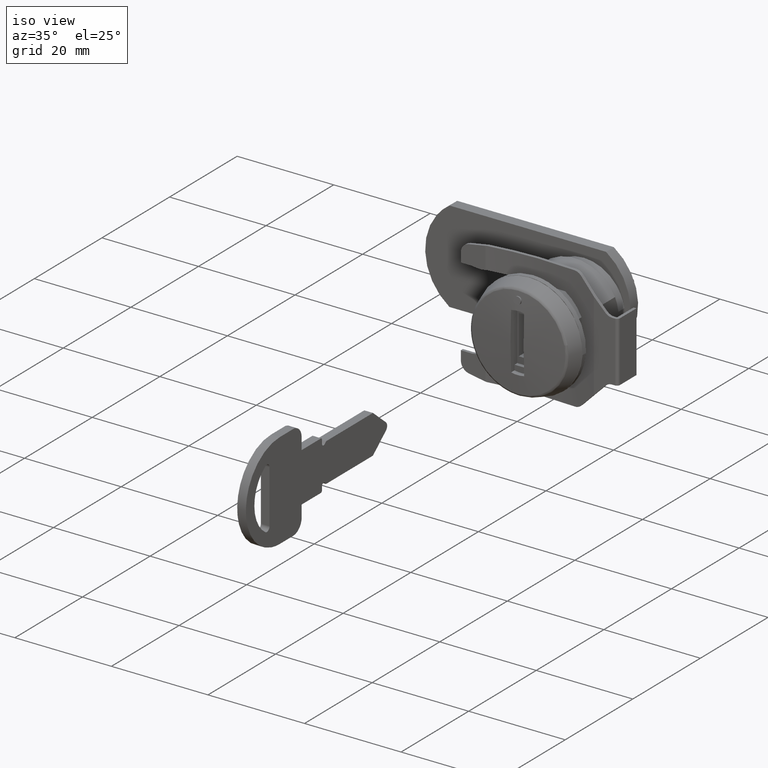
[diagram: clean part render]
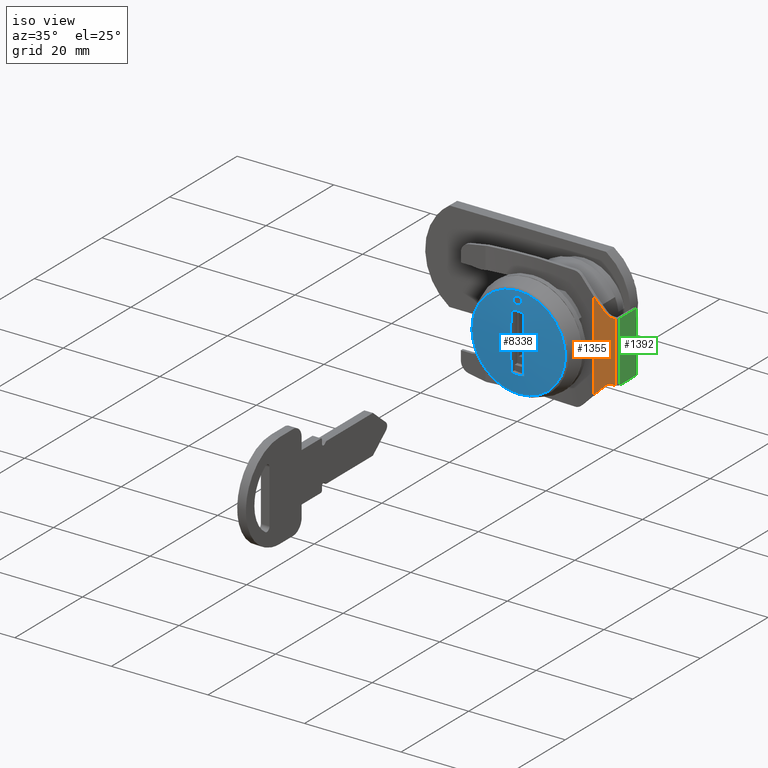
[diagram: same view with three faces highlighted in distinct colors, each labeled with its STEP entity id]
A machine part, iso view with three faces highlighted in distinct colors.
Their STEP definitions:

[orange] entity #1355 — the highlighted face is a freeform B-spline surface patch.
#757=CARTESIAN_POINT('',(6.701255999999920,-15.028427124746100,-6.250000000000000));
#758=VERTEX_POINT('',#757);
#764=CARTESIAN_POINT('',(6.701255999999920,-13.614213695077600,-6.835786304922330));
#765=VERTEX_POINT('',#764);
#766=CARTESIAN_POINT('',(6.701255999999920,-13.614213695077600,-6.835786304922330));
#767=CARTESIAN_POINT('',(6.701256000000001,-14.200000109935987,-6.250000000000000));
#768=CARTESIAN_POINT('',(6.701255999999920,-15.028427124746100,-6.250000000000000));
#776=(BOUNDED_CURVE()B_SPLINE_CURVE(2,(#766,#767,#768),.UNSPECIFIED.,.F.,.U.)CURVE()GEOMETRIC_REPRESENTATION_ITEM()QUASI_UNIFORM_CURVE()RATIONAL_B_SPLINE_CURVE((1.0,0.923879550466087,1.0))REPRESENTATION_ITEM(''));
#777=EDGE_CURVE('',#765,#758,#776,.T.);
#956=CARTESIAN_POINT('',(6.701255999999920,-13.614213695077600,6.835786304922330));
#957=VERTEX_POINT('',#956);
#963=CARTESIAN_POINT('',(6.701255999999920,-15.028427124746100,6.250000000000000));
#964=VERTEX_POINT('',#963);
#965=CARTESIAN_POINT('',(6.701255999999920,-15.028427124746100,6.250000000000000));
#966=CARTESIAN_POINT('',(6.701256000000000,-14.200000109935985,6.250000000000000));
#967=CARTESIAN_POINT('',(6.701255999999920,-13.614213695077600,6.835786304922330));
#975=(BOUNDED_CURVE()B_SPLINE_CURVE(2,(#965,#966,#967),.UNSPECIFIED.,.F.,.U.)CURVE()GEOMETRIC_REPRESENTATION_ITEM()QUASI_UNIFORM_CURVE()RATIONAL_B_SPLINE_CURVE((1.0,0.923879550466087,1.0))REPRESENTATION_ITEM(''));
#976=EDGE_CURVE('',#964,#957,#975,.T.);
#991=CARTESIAN_POINT('',(6.701255999999920,-11.224889015041580,-9.225110536547600));
#992=VERTEX_POINT('',#991);
#1028=CARTESIAN_POINT('',(6.701255999999920,-11.224889015041580,-9.225110536547600));
#1029=CARTESIAN_POINT('',(6.701255999999920,-13.614213695077600,-6.835786304922330));
#1030=QUASI_UNIFORM_CURVE('',1,(#1028,#1029),.UNSPECIFIED.,.F.,.U.);
#1031=EDGE_CURVE('',#992,#765,#1030,.T.);
#1041=CARTESIAN_POINT('',(6.701255999999920,-15.600000000000000,-6.250000000000000));
#1042=VERTEX_POINT('',#1041);
#1043=CARTESIAN_POINT('',(6.701255999999920,-15.028427124746100,-6.250000000000000));
#1044=CARTESIAN_POINT('',(6.701255999999920,-15.600000000000000,-6.250000000000000));
#1045=QUASI_UNIFORM_CURVE('',1,(#1043,#1044),.UNSPECIFIED.,.F.,.U.);
#1046=EDGE_CURVE('',#758,#1042,#1045,.T.);
#1100=CARTESIAN_POINT('',(6.701255999999920,-11.224889015041580,9.225110536547600));
#1101=VERTEX_POINT('',#1100);
#1102=CARTESIAN_POINT('',(6.701255999999920,-11.224889015041580,9.225110536547600));
#1103=CARTESIAN_POINT('',(6.701255999999920,-13.614213695077600,6.835786304922330));
#1104=QUASI_UNIFORM_CURVE('',1,(#1102,#1103),.UNSPECIFIED.,.F.,.U.);
#1105=EDGE_CURVE('',#1101,#957,#1104,.T.);
#1158=CARTESIAN_POINT('',(6.701255999999920,-15.600000000000000,6.250000000000000));
#1159=VERTEX_POINT('',#1158);
#1160=CARTESIAN_POINT('',(6.701255999999920,-15.028427124746100,6.250000000000000));
#1161=CARTESIAN_POINT('',(6.701255999999920,-15.600000000000000,6.250000000000000));
#1162=QUASI_UNIFORM_CURVE('',1,(#1160,#1161),.UNSPECIFIED.,.F.,.U.);
#1163=EDGE_CURVE('',#964,#1159,#1162,.T.);
#1332=CARTESIAN_POINT('',(6.701255999999920,-15.818537195922980,10.146699562981020));
#1333=CARTESIAN_POINT('',(6.701255999999920,-15.818537195922980,-10.146699562981020));
#1334=CARTESIAN_POINT('',(6.701255999999920,-11.006352092934391,10.146699562981020));
#1335=CARTESIAN_POINT('',(6.701255999999920,-11.006352092934391,-10.146699562981020));
#1336=B_SPLINE_SURFACE_WITH_KNOTS('',1,1,((#1332,#1334),(#1333,#1335)),.UNSPECIFIED.,.F.,.F.,.U.,(2,2),(2,2),(0.0,20.293399125962040),(0.0,4.812185102988590),.UNSPECIFIED.);
#1337=CARTESIAN_POINT('',(6.701255999999920,-11.224889015041580,-9.225110536547600));
#1338=CARTESIAN_POINT('',(6.701255999999920,-11.224889015041580,9.225110536547600));
#1339=QUASI_UNIFORM_CURVE('',1,(#1337,#1338),.UNSPECIFIED.,.F.,.U.);
#1340=EDGE_CURVE('',#992,#1101,#1339,.T.);
#1341=ORIENTED_EDGE('',*,*,#1340,.F.);
#1342=ORIENTED_EDGE('',*,*,#1031,.T.);
#1343=ORIENTED_EDGE('',*,*,#777,.T.);
#1344=ORIENTED_EDGE('',*,*,#1046,.T.);
#1345=CARTESIAN_POINT('',(6.701255999999920,-15.600000000000000,-6.250000000000000));
#1346=CARTESIAN_POINT('',(6.701255999999920,-15.600000000000000,6.250000000000000));
#1347=QUASI_UNIFORM_CURVE('',1,(#1345,#1346),.UNSPECIFIED.,.F.,.U.);
#1348=EDGE_CURVE('',#1042,#1159,#1347,.T.);
#1349=ORIENTED_EDGE('',*,*,#1348,.T.);
#1350=ORIENTED_EDGE('',*,*,#1163,.F.);
#1351=ORIENTED_EDGE('',*,*,#976,.T.);
#1352=ORIENTED_EDGE('',*,*,#1105,.F.);
#1353=EDGE_LOOP('',(#1341,#1342,#1343,#1344,#1349,#1350,#1351,#1352));
#1354=FACE_OUTER_BOUND('',#1353,.T.);
#1355=ADVANCED_FACE('',(#1354),#1336,.F.);

[blue] entity #8338 — the highlighted face is a freeform B-spline surface patch.
#7470=CARTESIAN_POINT('',(0.300159271301316,0.701130594300572,7.710393969342759));
#7471=VERTEX_POINT('',#7470);
#7477=CARTESIAN_POINT('',(0.278584860881453,-0.523789653383269,7.440766563371489));
#7478=VERTEX_POINT('',#7477);
#7479=CARTESIAN_POINT('',(0.300159271301316,0.701130594300572,7.710393969342759));
#7480=CARTESIAN_POINT('',(0.299855617532971,0.699684514819121,7.706599039317466));
#7481=CARTESIAN_POINT('',(0.299552699666332,0.698206214077159,7.702813306265453));
#7482=CARTESIAN_POINT('',(0.297431633699869,0.687606588102380,7.676305165217783));
#7483=CARTESIAN_POINT('',(0.295629477603547,0.677287394356344,7.653782618184089));
#7484=CARTESIAN_POINT('',(0.292137312017680,0.654606130221566,7.610139082633721));
#7485=CARTESIAN_POINT('',(0.290447582595863,0.642265790477542,7.589021594279268));
#7486=CARTESIAN_POINT('',(0.285543107075553,0.602322770441146,7.527727635999382));
#7487=CARTESIAN_POINT('',(0.282491478543643,0.571826387779951,7.489589737023952));
#7488=CARTESIAN_POINT('',(0.276839695696463,0.502824478883514,7.418956263453228));
#7489=CARTESIAN_POINT('',(0.274314453506199,0.465183498328585,7.387396907347681));
#7490=CARTESIAN_POINT('',(0.271003037268653,0.404802123103559,7.346012296929916));
#7491=CARTESIAN_POINT('',(0.269976611089082,0.383985046248918,7.333184478100418));
#7492=CARTESIAN_POINT('',(0.268081499542128,0.340944396895276,7.309500215101514));
#7493=CARTESIAN_POINT('',(0.267209458701839,0.318603128903870,7.298601835721046));
#7494=CARTESIAN_POINT('',(0.264885068867037,0.250753862718366,7.269552643208903));
#7495=CARTESIAN_POINT('',(0.263706251253156,0.204180140043509,7.254820303869941));
#7496=CARTESIAN_POINT('',(0.262078470509144,0.108393237841327,7.234477022595701));
#7497=CARTESIAN_POINT('',(0.261635238742224,0.058752204721457,7.228937708693934));
#7498=CARTESIAN_POINT('',(0.261533256415622,-0.039167328316873,7.227663178839291));
#7499=CARTESIAN_POINT('',(0.261861357637449,-0.087858062038528,7.231763642287317));
#7500=CARTESIAN_POINT('',(0.262931706975338,-0.160483829682612,7.245140393254832));
#7501=CARTESIAN_POINT('',(0.263388114322641,-0.184687765166290,7.250844369712308));
#7502=CARTESIAN_POINT('',(0.264477022635454,-0.231909923866102,7.264453062511318));
#7503=CARTESIAN_POINT('',(0.265110807257931,-0.255055498408913,7.272373821427845));
#7504=CARTESIAN_POINT('',(0.267275187435311,-0.323121580899236,7.299423284259245));
#7505=CARTESIAN_POINT('',(0.269073281090400,-0.366820399458291,7.321895060705325));
#7506=CARTESIAN_POINT('',(0.273370964418780,-0.449835456988199,7.375605599485481));
#7507=CARTESIAN_POINT('',(0.275824813367651,-0.488326625750851,7.406272714546898));
#7508=CARTESIAN_POINT('',(0.278584860881453,-0.523789653383270,7.440766563371490));
#7509=B_SPLINE_CURVE_WITH_KNOTS('',3,(#7479,#7480,#7481,#7482,#7483,#7484,#7485,#7486,#7487,#7488,#7489,#7490,#7491,#7492,#7493,#7494,#7495,#7496,#7497,#7498,#7499,#7500,#7501,#7502,#7503,#7504,#7505,#7506,#7507,#7508),.UNSPECIFIED.,.F.,.U.,(4,2,2,2,2,2,2,2,2,2,2,2,2,2,4),(0.684904013886884,0.687499999999999,0.703124999999999,0.718749999999999,0.749999999999999,0.781249999999999,0.796874999999999,0.812499999999999,0.843749999999999,0.874999999999999,0.906250000000000,0.921875000000000,0.937500000000000,0.968750000000000,1.0),.UNSPECIFIED.);
#7510=EDGE_CURVE('',#7471,#7478,#7509,.T.);
#7512=CARTESIAN_POINT('',(0.378445533027694,0.225766074778682,8.688780922300953));
#7513=VERTEX_POINT('',#7512);
#7514=CARTESIAN_POINT('',(0.278584860881453,-0.523789653383269,7.440766563371489));
#7515=CARTESIAN_POINT('',(0.281344908395255,-0.559252681015691,7.475260412196083));
#7516=CARTESIAN_POINT('',(0.284336381043423,-0.590727627309438,7.512646509635831));
#7517=CARTESIAN_POINT('',(0.289156530896685,-0.632202574379577,7.572886603155555));
#7518=CARTESIAN_POINT('',(0.290819150283770,-0.645064200738935,7.593665282328334));
#7519=CARTESIAN_POINT('',(0.294258745604684,-0.668816780690184,7.636651818039793));
#7520=CARTESIAN_POINT('',(0.296041583065087,-0.679725346184545,7.658932929336068));
#7521=CARTESIAN_POINT('',(0.301447905203081,-0.708762325652259,7.726498743907190));
#7522=CARTESIAN_POINT('',(0.305162596710400,-0.723505750587238,7.772923309659156));
#7523=CARTESIAN_POINT('',(0.312810953708613,-0.743846161051148,7.868509080822014));
#7524=CARTESIAN_POINT('',(0.316769593971589,-0.749349233737392,7.917982409849639));
#7525=CARTESIAN_POINT('',(0.324573997638959,-0.750539937230626,8.015518383024800));
#7526=CARTESIAN_POINT('',(0.328458867677249,-0.746390632125178,8.064069764525994));
#7527=CARTESIAN_POINT('',(0.334259554580444,-0.732879835161017,8.136564174900107));
#7528=CARTESIAN_POINT('',(0.336186906802460,-0.727139290608939,8.160651367546405));
#7529=CARTESIAN_POINT('',(0.339947648082027,-0.713460279906678,8.207651442913628));
#7530=CARTESIAN_POINT('',(0.343636331496297,-0.697539812699091,8.253750971062361));
#7531=CARTESIAN_POINT('',(0.347183078220645,-0.677204214459772,8.298076637456287));
#7532=CARTESIAN_POINT('',(0.350657890207087,-0.654630989757610,8.341503295423165));
#7533=CARTESIAN_POINT('',(0.352367994438488,-0.642152148673480,8.362875419104871));
#7534=CARTESIAN_POINT('',(0.357317810412993,-0.601784773418061,8.424736022257655));
#7535=CARTESIAN_POINT('',(0.360361148332814,-0.571209742928173,8.462770308842581));
#7536=CARTESIAN_POINT('',(0.365948438363678,-0.502928327229403,8.532597779819071));
#7537=CARTESIAN_POINT('',(0.368513398449972,-0.464749824540594,8.564653512561218));
#7538=CARTESIAN_POINT('',(0.372938975757160,-0.383880561754712,8.619962413524815));
#7539=CARTESIAN_POINT('',(0.374819430913943,-0.341099273756177,8.643463507464444));
#7540=CARTESIAN_POINT('',(0.377138837672253,-0.273387756992893,8.672450423698246));
#7541=CARTESIAN_POINT('',(0.377830714894342,-0.250090484022278,8.681097198141284));
#7542=CARTESIAN_POINT('',(0.379018078089444,-0.203123194986766,8.695936336361527));
#7543=CARTESIAN_POINT('',(0.379515846766553,-0.179426249798323,8.702157228361225));
#7544=CARTESIAN_POINT('',(0.380728322706604,-0.107710876407153,8.717310214521946));
#7545=CARTESIAN_POINT('',(0.381164941037054,-0.059074006439434,8.722766876630001));
#7546=CARTESIAN_POINT('',(0.381265784594414,0.039917457930251,8.724027174652079));
#7547=CARTESIAN_POINT('',(0.380927045114597,0.088811056060332,8.719793758977307));
#7548=CARTESIAN_POINT('',(0.379860492590610,0.160866088742602,8.706464458904772));
#7549=CARTESIAN_POINT('',(0.379411233440203,0.184692576354957,8.700849817439456));
#7550=CARTESIAN_POINT('',(0.378731961887994,0.214146488991716,8.692360583063747));
#7551=CARTESIAN_POINT('',(0.378591618326729,0.219963550598461,8.690606631524307));
#7552=CARTESIAN_POINT('',(0.378445533027694,0.225766074778682,8.688780922300953));
#7553=B_SPLINE_CURVE_WITH_KNOTS('',3,(#7514,#7515,#7516,#7517,#7518,#7519,#7520,#7521,#7522,#7523,#7524,#7525,#7526,#7527,#7528,#7529,#7530,#7531,#7532,#7533,#7534,#7535,#7536,#7537,#7538,#7539,#7540,#7541,#7542,#7543,#7544,#7545,#7546,#7547,#7548,#7549,#7550,#7551,#7552),.UNSPECIFIED.,.F.,.U.,(4,2,2,2,2,2,2,2,1,2,2,2,2,2,2,2,2,2,2,4),(0.0,0.031250000000003,0.046875000000004,0.062500000000005,0.093750000000006,0.125000000000007,0.156250000000008,0.171875000000008,0.187500000000008,0.203125000000008,0.218750000000008,0.250000000000007,0.281250000000006,0.312500000000005,0.328125000000005,0.343750000000005,0.375000000000004,0.406250000000003,0.421875000000003,0.425725489204131),.UNSPECIFIED.);
#7554=EDGE_CURVE('',#7478,#7513,#7553,.T.);
#7598=CARTESIAN_POINT('',(0.364229293935231,0.523599874790095,8.511112675767238));
#7599=VERTEX_POINT('',#7598);
#7600=CARTESIAN_POINT('',(0.378445533027694,0.225766074778682,8.688780922300953));
#7601=CARTESIAN_POINT('',(0.377998557272234,0.243507886925480,8.683194817685877));
#7602=CARTESIAN_POINT('',(0.377497360646554,0.261109898108830,8.676931084706236));
#7603=CARTESIAN_POINT('',(0.375492674973847,0.324002245849758,8.651877412916383));
#7604=CARTESIAN_POINT('',(0.373698532461046,0.367371750230485,8.629455016092987));
#7605=CARTESIAN_POINT('',(0.369442454310505,0.449545729231534,8.576264440359683));
#7606=CARTESIAN_POINT('',(0.366954719986882,0.488556914998954,8.545173840924051));
#7607=CARTESIAN_POINT('',(0.364229293935231,0.523599874790099,8.511112675767235));
#7608=B_SPLINE_CURVE_WITH_KNOTS('',3,(#7600,#7601,#7602,#7603,#7604,#7605,#7606,#7607),.UNSPECIFIED.,.F.,.U.,(4,2,2,4),(0.425725489204131,0.437500000000002,0.468750000000002,0.500000000000001),.UNSPECIFIED.);
#7609=EDGE_CURVE('',#7513,#7599,#7608,.T.);
#7611=CARTESIAN_POINT('',(0.364229293935231,0.523599874790099,8.511112675767235));
#7612=CARTESIAN_POINT('',(0.361503867883580,0.558642834581243,8.477051510610417));
#7613=CARTESIAN_POINT('',(0.358524336322904,0.590156112651515,8.439814647582585));
#7614=CARTESIAN_POINT('',(0.353666131843793,0.632023870544305,8.379098964238942));
#7615=CARTESIAN_POINT('',(0.351978650815609,0.645073974366570,8.358009575310062));
#7616=CARTESIAN_POINT('',(0.348546704210245,0.668776128035077,8.315118629850772));
#7617=CARTESIAN_POINT('',(0.345040115455904,0.690245410438050,8.271294839942208));
#7618=CARTESIAN_POINT('',(0.341386750080056,0.707323965818053,8.225636700962641));
#7619=CARTESIAN_POINT('',(0.337659124558983,0.722181077326043,8.179050491647192));
#7620=CARTESIAN_POINT('',(0.335749238917718,0.728521463651403,8.155181588574871));
#7621=CARTESIAN_POINT('',(0.329968078250330,0.743908550349163,8.082931208429478));
#7622=CARTESIAN_POINT('',(0.326090787527044,0.749287662020342,8.034474549843182));
#7623=CARTESIAN_POINT('',(0.320241121373507,0.750257901996596,7.961368018536952));
#7624=CARTESIAN_POINT('',(0.318285570221303,0.749389666991409,7.936928408176783));
#7625=CARTESIAN_POINT('',(0.314362819170323,0.745201740852900,7.887903606591893));
#7626=CARTESIAN_POINT('',(0.312402336961477,0.741874072015014,7.863402370074313));
#7627=CARTESIAN_POINT('',(0.306950632792973,0.729182324194915,7.795269391027957));
#7628=CARTESIAN_POINT('',(0.303510808784918,0.717096657509951,7.752279997286168));
#7629=CARTESIAN_POINT('',(0.300159271301316,0.701130594300572,7.710393969342759));
#7630=B_SPLINE_CURVE_WITH_KNOTS('',3,(#7611,#7612,#7613,#7614,#7615,#7616,#7617,#7618,#7619,#7620,#7621,#7622,#7623,#7624,#7625,#7626,#7627,#7628,#7629),.UNSPECIFIED.,.F.,.U.,(4,2,2,1,2,2,2,2,2,4),(0.500000000000001,0.531250000000001,0.546875000000000,0.562500000000000,0.578125000000000,0.593749999999999,0.624999999999999,0.640624999999999,0.656249999999999,0.684904013886886),.UNSPECIFIED.);
#7631=EDGE_CURVE('',#7599,#7471,#7630,.T.);
#7886=CARTESIAN_POINT('',(0.468943751910371,-9.478241625974258,1.931815774197963));
#7887=VERTEX_POINT('',#7886);
#7901=CARTESIAN_POINT('',(0.468943722065800,0.0,-9.673105528469440));
#7902=VERTEX_POINT('',#7901);
#7903=CARTESIAN_POINT('',(0.468943722065800,0.0,-9.673105528469440));
#7904=CARTESIAN_POINT('',(0.468943722065800,-9.673105528469442,-9.673105528469442));
#7905=CARTESIAN_POINT('',(0.468943722065800,-9.673105528469440,0.0));
#7906=CARTESIAN_POINT('',(0.468943722065800,-9.673105528469440,0.975735929080588));
#7907=CARTESIAN_POINT('',(0.468943751910371,-9.478241625974256,1.931815774197964));
#7915=(BOUNDED_CURVE()B_SPLINE_CURVE(2,(#7903,#7904,#7905,#7906,#7907),.UNSPECIFIED.,.F.,.U.)B_SPLINE_CURVE_WITH_KNOTS((3,2,3),(0.500000000000000,0.750000000000000,0.784232961361366),.UNSPECIFIED.)CURVE()GEOMETRIC_REPRESENTATION_ITEM()RATIONAL_B_SPLINE_CURVE((1.0,0.707106781186547,1.0,0.959893591029412,0.930770871247890))REPRESENTATION_ITEM(''));
#7916=EDGE_CURVE('',#7902,#7887,#7915,.T.);
#7918=CARTESIAN_POINT('',(0.468943751906344,3.013292957503454,9.191792102590750));
#7919=VERTEX_POINT('',#7918);
#7920=CARTESIAN_POINT('',(0.468943751906344,3.013292957503454,9.191792102590750));
#7921=CARTESIAN_POINT('',(0.468943722065800,9.673105528469442,7.008543282345916));
#7922=CARTESIAN_POINT('',(0.468943722065800,9.673105528469440,0.0));
#7923=CARTESIAN_POINT('',(0.468943722065800,9.673105528469442,-9.673105528469442));
#7924=CARTESIAN_POINT('',(0.468943722065800,0.0,-9.673105528469440));
#7932=(BOUNDED_CURVE()B_SPLINE_CURVE(2,(#7920,#7921,#7922,#7923,#7924),.UNSPECIFIED.,.F.,.U.)B_SPLINE_CURVE_WITH_KNOTS((3,2,3),(0.052968605904176,0.250000000000000,0.500000000000000),.UNSPECIFIED.)CURVE()GEOMETRIC_REPRESENTATION_ITEM()RATIONAL_B_SPLINE_CURVE((0.902183241216036,0.769163363103889,1.0,0.707106781186547,1.0))REPRESENTATION_ITEM(''));
#7933=EDGE_CURVE('',#7919,#7902,#7932,.T.);
#7976=CARTESIAN_POINT('',(0.468943722065800,0.0,9.673105528469440));
#7977=VERTEX_POINT('',#7976);
#7978=CARTESIAN_POINT('',(0.468943722065800,0.0,9.673105528469440));
#7979=CARTESIAN_POINT('',(0.468943722065800,1.545086585039350,9.673105528469440));
#7980=CARTESIAN_POINT('',(0.468943751906344,3.013292957503454,9.191792102590750));
#7988=(BOUNDED_CURVE()B_SPLINE_CURVE(2,(#7978,#7979,#7980),.UNSPECIFIED.,.F.,.U.)B_SPLINE_CURVE_WITH_KNOTS((3,3),(0.0,0.052968605904176),.UNSPECIFIED.)CURVE()GEOMETRIC_REPRESENTATION_ITEM()RATIONAL_B_SPLINE_CURVE((1.0,0.937943418082658,0.902183241216036))REPRESENTATION_ITEM(''));
#7989=EDGE_CURVE('',#7977,#7919,#7988,.T.);
#7991=CARTESIAN_POINT('',(0.468943751910371,-9.478241625974258,1.931815774197963));
#7992=CARTESIAN_POINT('',(0.468943722065800,-7.900443845498501,9.673105528469440));
#7993=CARTESIAN_POINT('',(0.468943722065800,0.0,9.673105528469440));
#8001=(BOUNDED_CURVE()B_SPLINE_CURVE(2,(#7991,#7992,#7993),.UNSPECIFIED.,.F.,.U.)B_SPLINE_CURVE_WITH_KNOTS((3,3),(0.784232961361366,1.0),.UNSPECIFIED.)CURVE()GEOMETRIC_REPRESENTATION_ITEM()RATIONAL_B_SPLINE_CURVE((0.930770871247890,0.747213190157135,1.0))REPRESENTATION_ITEM(''));
#8002=EDGE_CURVE('',#7887,#7977,#8001,.T.);
#8138=CARTESIAN_POINT('',(0.180162292257841,1.349999908136044,-5.846152602184850));
#8139=VERTEX_POINT('',#8138);
#8145=CARTESIAN_POINT('',(0.180162292257813,-1.350000000000000,-5.846152580971530));
#8146=VERTEX_POINT('',#8145);
#8147=CARTESIAN_POINT('',(0.180162292257841,1.349999908136043,-5.846152602184849));
#8148=CARTESIAN_POINT('',(0.180162292257841,-0.000000048381280,-6.157896058317166));
#8149=CARTESIAN_POINT('',(0.180162292257813,-1.350000000000000,-5.846152580971530));
#8157=(BOUNDED_CURVE()B_SPLINE_CURVE(2,(#8147,#8148,#8149),.UNSPECIFIED.,.F.,.U.)CURVE()GEOMETRIC_REPRESENTATION_ITEM()QUASI_UNIFORM_CURVE()RATIONAL_B_SPLINE_CURVE((1.0,0.974358765263031,1.0))REPRESENTATION_ITEM(''));
#8158=EDGE_CURVE('',#8139,#8146,#8157,.T.);
#8175=CARTESIAN_POINT('',(0.180162292257743,1.350000000000000,5.846152580971530));
#8176=VERTEX_POINT('',#8175);
#8182=CARTESIAN_POINT('',(0.180162292257743,1.350000000000000,5.846152580971530));
#8183=CARTESIAN_POINT('',(-0.162229569388786,1.350000000000000,-0.000000010606564));
#8184=CARTESIAN_POINT('',(0.180162292257841,1.349999908136044,-5.846152602184850));
#8192=(BOUNDED_CURVE()B_SPLINE_CURVE(2,(#8182,#8183,#8184),.UNSPECIFIED.,.F.,.U.)CURVE()GEOMETRIC_REPRESENTATION_ITEM()QUASI_UNIFORM_CURVE()RATIONAL_B_SPLINE_CURVE((1.0,0.998289350333439,1.0))REPRESENTATION_ITEM(''));
#8193=EDGE_CURVE('',#8176,#8139,#8192,.T.);
#8215=CARTESIAN_POINT('',(0.180162292257813,-1.350000000000000,5.846152580971530));
#8216=VERTEX_POINT('',#8215);
#8222=CARTESIAN_POINT('',(0.180162292257813,-1.350000000000000,5.846152580971530));
#8223=CARTESIAN_POINT('',(0.180162292257841,0.0,6.157896069489425));
#8224=CARTESIAN_POINT('',(0.180162292257743,1.350000000000000,5.846152580971530));
#8232=(BOUNDED_CURVE()B_SPLINE_CURVE(2,(#8222,#8223,#8224),.UNSPECIFIED.,.F.,.U.)CURVE()GEOMETRIC_REPRESENTATION_ITEM()QUASI_UNIFORM_CURVE()RATIONAL_B_SPLINE_CURVE((1.0,0.974358763495254,1.0))REPRESENTATION_ITEM(''));
#8233=EDGE_CURVE('',#8216,#8176,#8232,.T.);
#8247=CARTESIAN_POINT('',(0.180162292257813,-1.350000000000000,-5.846152580971530));
#8248=CARTESIAN_POINT('',(-0.162229568767588,-1.350000000000000,-3.642919E-014));
#8249=CARTESIAN_POINT('',(0.180162292257813,-1.350000000000000,5.846152580971530));
#8257=(BOUNDED_CURVE()B_SPLINE_CURVE(2,(#8247,#8248,#8249),.UNSPECIFIED.,.F.,.U.)CURVE()GEOMETRIC_REPRESENTATION_ITEM()QUASI_UNIFORM_CURVE()RATIONAL_B_SPLINE_CURVE((1.0,0.998289350339630,1.0))REPRESENTATION_ITEM(''));
#8258=EDGE_CURVE('',#8146,#8216,#8257,.T.);
#8296=CARTESIAN_POINT('',(1.130546150623343,-10.601071229419757,10.604168251906525));
#8297=CARTESIAN_POINT('',(0.567040386605690,-5.315554926692959,10.634215651428670));
#8298=CARTESIAN_POINT('',(0.567040386605690,5.314767058998221,10.634215651428670));
#8299=CARTESIAN_POINT('',(1.130379589989284,10.599508823812469,10.604177133295568));
#8300=CARTESIAN_POINT('',(0.566710157027228,-10.631127456829880,5.317116630007664));
#8301=CARTESIAN_POINT('',(2.842171E-014,-5.330668448181578,5.332225762503530));
#8302=CARTESIAN_POINT('',(2.842171E-014,5.329878340371651,5.332225762503530));
#8303=CARTESIAN_POINT('',(0.566542650586263,10.629560646720732,5.317121095918467));
#8304=CARTESIAN_POINT('',(0.566710157027228,-10.631127456829880,-5.317117304133028));
#8305=CARTESIAN_POINT('',(2.842171E-014,-5.330668448181578,-5.332226438544490));
#8306=CARTESIAN_POINT('',(2.842171E-014,5.329878340371651,-5.332226438544490));
#8307=CARTESIAN_POINT('',(0.566542650586263,10.629560646720732,-5.317121770044397));
#8308=CARTESIAN_POINT('',(1.130546293189923,-10.601071221820012,-10.604169588743526));
#8309=CARTESIAN_POINT('',(0.567040529981352,-5.315554922871521,-10.634216992032055));
#8310=CARTESIAN_POINT('',(0.567040529981352,5.314767055177351,-10.634216992032055));
#8311=CARTESIAN_POINT('',(1.130379732556100,10.599508816213829,-10.604178470133673));
#8319=(BOUNDED_SURFACE()B_SPLINE_SURFACE(2,2,((#8296,#8300,#8304,#8308),(#8297,#8301,#8305,#8309),(#8298,#8302,#8306,#8310),(#8299,#8303,#8307,#8311)),.UNSPECIFIED.,.F.,.F.,.U.)B_SPLINE_SURFACE_WITH_KNOTS((3,1,3),(3,1,3),(34.251781968879698,44.640580472222297,55.027839155387881),(34.248746960258487,44.640580472222290,55.032415301704397),.UNSPECIFIED.)GEOMETRIC_REPRESENTATION_ITEM()RATIONAL_B_SPLINE_SURFACE(((1.005684865768675,1.002841602610444,1.002841602610444,1.005684866489635),(1.002843263158231,1.0,1.0,1.002843263879191),(1.002843263158231,1.0,1.0,1.002843263879191),(1.005684023470547,1.002840760312316,1.002840760312316,1.005684024191508)))REPRESENTATION_ITEM('')SURFACE());
#8320=ORIENTED_EDGE('',*,*,#7989,.T.);
#8321=ORIENTED_EDGE('',*,*,#7933,.T.);
#8322=ORIENTED_EDGE('',*,*,#7916,.T.);
#8323=ORIENTED_EDGE('',*,*,#8002,.T.);
#8324=EDGE_LOOP('',(#8320,#8321,#8322,#8323));
#8325=FACE_OUTER_BOUND('',#8324,.T.);
#8326=ORIENTED_EDGE('',*,*,#8258,.F.);
#8327=ORIENTED_EDGE('',*,*,#8158,.F.);
#8328=ORIENTED_EDGE('',*,*,#8193,.F.);
#8329=ORIENTED_EDGE('',*,*,#8233,.F.);
#8330=EDGE_LOOP('',(#8326,#8327,#8328,#8329));
#8331=FACE_BOUND('',#8330,.T.);
#8332=ORIENTED_EDGE('',*,*,#7631,.F.);
#8333=ORIENTED_EDGE('',*,*,#7609,.F.);
#8334=ORIENTED_EDGE('',*,*,#7554,.F.);
#8335=ORIENTED_EDGE('',*,*,#7510,.F.);
#8336=EDGE_LOOP('',(#8332,#8333,#8334,#8335));
#8337=FACE_BOUND('',#8336,.T.);
#8338=ADVANCED_FACE('',(#8325,#8331,#8337),#8319,.T.);

[green] entity #1392 — the highlighted face is a freeform B-spline surface patch.
#1063=CARTESIAN_POINT('',(12.201255999999880,-16.199999999999999,-6.250000000000000));
#1064=VERTEX_POINT('',#1063);
#1070=CARTESIAN_POINT('',(7.301255999999870,-16.199999999999999,-6.250000000000000));
#1071=VERTEX_POINT('',#1070);
#1072=CARTESIAN_POINT('',(12.201255999999880,-16.199999999999999,-6.250000000000000));
#1073=CARTESIAN_POINT('',(7.301255999999870,-16.199999999999999,-6.250000000000000));
#1074=QUASI_UNIFORM_CURVE('',1,(#1072,#1073),.UNSPECIFIED.,.F.,.U.);
#1075=EDGE_CURVE('',#1064,#1071,#1074,.T.);
#1165=CARTESIAN_POINT('',(7.301255999999870,-16.199999999999999,6.250000000000000));
#1166=VERTEX_POINT('',#1165);
#1182=CARTESIAN_POINT('',(12.201255999999880,-16.199999999999999,6.250000000000000));
#1183=VERTEX_POINT('',#1182);
#1184=CARTESIAN_POINT('',(12.201255999999880,-16.199999999999999,6.250000000000000));
#1185=CARTESIAN_POINT('',(7.301255999999870,-16.199999999999999,6.250000000000000));
#1186=QUASI_UNIFORM_CURVE('',1,(#1184,#1185),.UNSPECIFIED.,.F.,.U.);
#1187=EDGE_CURVE('',#1183,#1166,#1186,.T.);
#1281=CARTESIAN_POINT('',(12.201255999999880,-16.199999999999999,-6.250000000000000));
#1282=CARTESIAN_POINT('',(12.201255999999880,-16.199999999999999,6.250000000000000));
#1283=QUASI_UNIFORM_CURVE('',1,(#1281,#1282),.UNSPECIFIED.,.F.,.U.);
#1284=EDGE_CURVE('',#1064,#1183,#1283,.T.);
#1371=CARTESIAN_POINT('',(7.301255999999870,-16.199999999999999,-6.250000000000000));
#1372=CARTESIAN_POINT('',(7.301255999999870,-16.199999999999999,6.250000000000000));
#1373=QUASI_UNIFORM_CURVE('',1,(#1371,#1372),.UNSPECIFIED.,.F.,.U.);
#1374=EDGE_CURVE('',#1071,#1166,#1373,.T.);
#1381=CARTESIAN_POINT('',(7.056501210994037,-16.199999999999999,-6.874374975772575));
#1382=CARTESIAN_POINT('',(7.056501210994037,-16.199999999999999,6.874375311048702));
#1383=CARTESIAN_POINT('',(12.446010745196300,-16.199999999999999,-6.874374975772575));
#1384=CARTESIAN_POINT('',(12.446010745196300,-16.199999999999999,6.874375311048702));
#1385=B_SPLINE_SURFACE_WITH_KNOTS('',1,1,((#1381,#1383),(#1382,#1384)),.UNSPECIFIED.,.F.,.F.,.U.,(2,2),(2,2),(0.0,13.748750286821281),(0.0,5.389509534202261),.UNSPECIFIED.);
#1386=ORIENTED_EDGE('',*,*,#1374,.F.);
#1387=ORIENTED_EDGE('',*,*,#1075,.F.);
#1388=ORIENTED_EDGE('',*,*,#1284,.T.);
#1389=ORIENTED_EDGE('',*,*,#1187,.T.);
#1390=EDGE_LOOP('',(#1386,#1387,#1388,#1389));
#1391=FACE_OUTER_BOUND('',#1390,.T.);
#1392=ADVANCED_FACE('',(#1391),#1385,.F.);